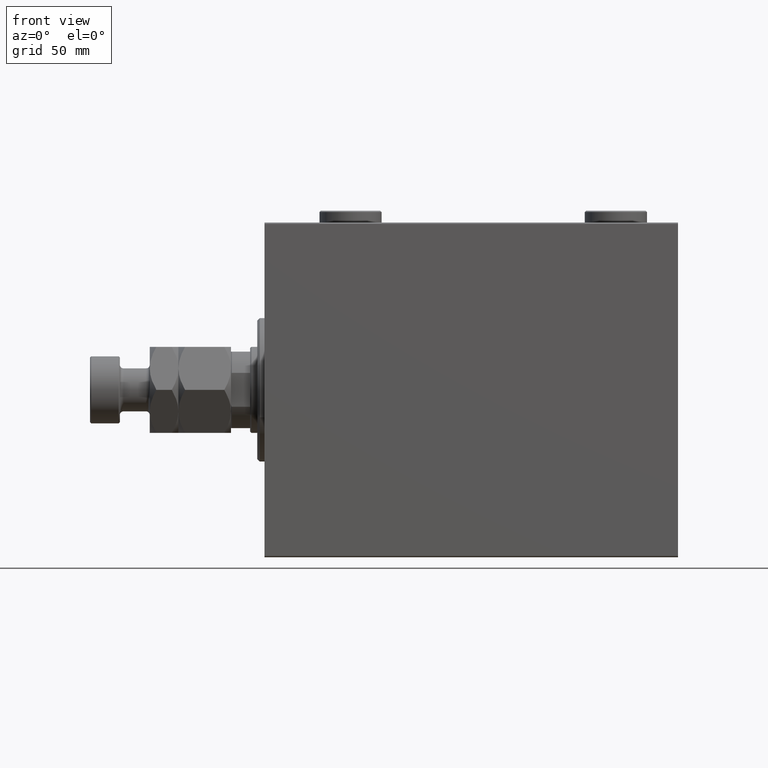
[diagram: clean part render]
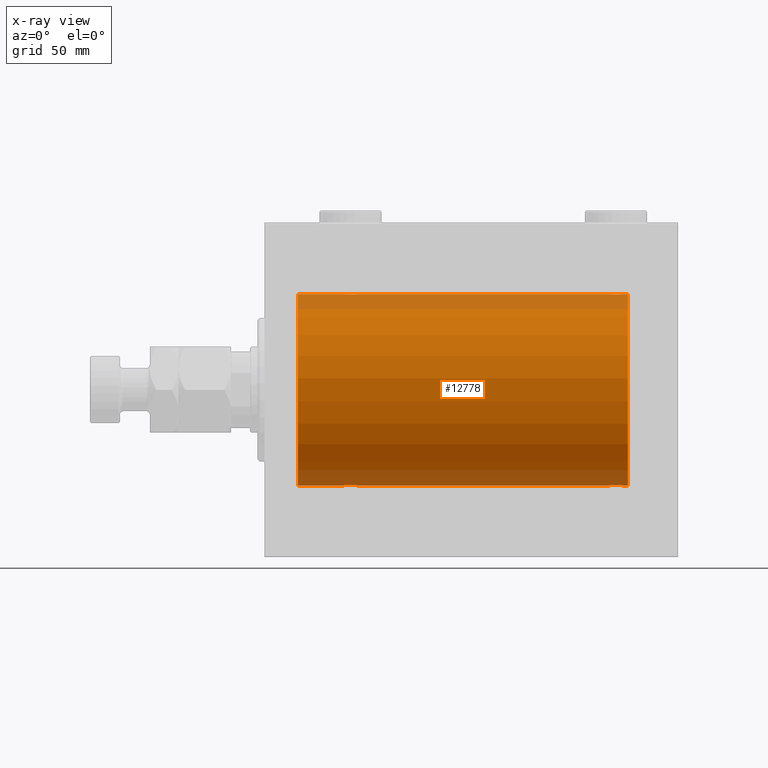
[diagram: x-ray — body ghosted, one internal face saturated and labeled with its STEP entity id]
A machine part, front view, then the same camera in x-ray: the body is ghosted and one INTERNAL B-rep face — a face not visible from any outside direction — is saturated and labeled: STEP entity #12778.
In plain terms, the highlighted cylindrical surface (partial cylindrical patch) has radius 40 mm, axis along (-1, -0, -0).
Its self-contained STEP definition (entity closure, byte-faithful):
#26 = ORIENTED_EDGE ( 'NONE', *, *, #29631, .F. ) ;
#97 = CARTESIAN_POINT ( 'NONE',  ( 149.6018872812850020, -1.506322235190787895, 39.97196309111976831 ) ) ;
#272 = CARTESIAN_POINT ( 'NONE',  ( 38.90425173651352253, -0.7773146824710970293, -39.99291453282343412 ) ) ;
#507 = CARTESIAN_POINT ( 'NONE',  ( 36.77869523415741781, -2.903766417398227162, -39.89448096967571900 ) ) ;
#548 = CARTESIAN_POINT ( 'NONE',  ( 35.03061658105534804, -2.845855236045349734, 39.89870693240651889 ) ) ;
#605 = CARTESIAN_POINT ( 'NONE',  ( 148.9846144781228645, -2.258217541132895967, -39.93644519243653690 ) ) ;
#739 = CARTESIAN_POINT ( 'NONE',  ( 36.96938341894464486, -2.845855236045336412, -39.89870693240652599 ) ) ;
#781 = CARTESIAN_POINT ( 'NONE',  ( 33.30278659419118270, -1.327859336864150253, 39.97836169682017982 ) ) ;
#822 = CARTESIAN_POINT ( 'NONE',  ( 152.0000000000000000, 0.000000000000000000, 40.00000000000000000 ) ) ;
#860 = EDGE_CURVE ( 'NONE', #6389, #2672, #4779, .T. ) ;
#1006 = CARTESIAN_POINT ( 'NONE',  ( 38.92026174991647025, -0.7903958539027386987, 39.99381900068935636 ) ) ;
#1011 = CARTESIAN_POINT ( 'NONE',  ( 144.0000000000000284, -1.482387970046064334E-23, 40.00000000000000000 ) ) ;
#1066 = CARTESIAN_POINT ( 'NONE',  ( 147.9693834189446591, -2.845855236045343961, -39.89870693240651889 ) ) ;
#1240 = CARTESIAN_POINT ( 'NONE',  ( 33.15334726986859692, -0.9668189122103387767, 39.98872185468385254 ) ) ;
#1526 = CARTESIAN_POINT ( 'NONE',  ( 146.6089030749067490, -2.980812880639890583, -39.88879797994690080 ) ) ;
#2495 = CARTESIAN_POINT ( 'NONE',  ( 39.00000000000000000, 4.898587181754971267E-15, -40.00000000000000000 ) ) ;
#2672 = VERTEX_POINT ( 'NONE', #27625 ) ;
#2761 = CARTESIAN_POINT ( 'NONE',  ( 13.99999999999998401, 0.000000000000000000, 0.000000000000000000 ) ) ;
#3203 = CARTESIAN_POINT ( 'NONE',  ( 33.61748319088536618, -1.833695109615709917, -39.95828327492364451 ) ) ;
#3205 = CARTESIAN_POINT ( 'NONE',  ( 144.0957482634864846, -0.7773146824711021363, 39.99291453282343412 ) ) ;
#3431 = CARTESIAN_POINT ( 'NONE',  ( 144.3027865941912182, -1.327859336864145590, 39.97836169682017982 ) ) ;
#3538 = AXIS2_PLACEMENT_3D ( 'NONE', #43288, #43517, #14986 ) ;
#3655 = CARTESIAN_POINT ( 'NONE',  ( 148.5008846840404146, -2.604941918888313612, 39.91523680494984916 ) ) ;
#3889 = CARTESIAN_POINT ( 'NONE',  ( 149.6953700770844193, -1.331594428131642527, 39.97823692017210107 ) ) ;
#3925 = CARTESIAN_POINT ( 'NONE',  ( 150.0000000000000284, 4.898587181765620889E-15, -40.00000000000000000 ) ) ;
#4065 = CARTESIAN_POINT ( 'NONE',  ( 33.07973825008353685, -0.7903958539027335917, -39.99381900068937057 ) ) ;
#4165 = CARTESIAN_POINT ( 'NONE',  ( 145.6714635525370625, -2.696981015661914949, -39.90904630908467965 ) ) ;
#4236 = ORIENTED_EDGE ( 'NONE', *, *, #8737, .T. ) ;
#4298 = CARTESIAN_POINT ( 'NONE',  ( 36.39522483453575319, -2.980272303779539556, -39.88883864243169342 ) ) ;
#4339 = CARTESIAN_POINT ( 'NONE',  ( 36.96489325853514174, -2.847401743820462183, 39.89859630624607689 ) ) ;
#4528 = CARTESIAN_POINT ( 'NONE',  ( 37.33224268865864559, -2.695129988695730727, -39.90917164320281074 ) ) ;
#4636 = CARTESIAN_POINT ( 'NONE',  ( 149.6043359991207922, -1.502129635934003726, -39.97212271185185273 ) ) ;
#4779 = B_SPLINE_CURVE_WITH_KNOTS ( 'NONE', 3,
 ( #37227, #8677, #12006, #23183, #34122, #40789, #4636, #37689, #19160, #605, #33666, #5101, #19624, #1066, #8442, #22947, #37460, #4874, #1526, #16058, #36759, #4165, #18690, #33196, #15124, #44135, #31023, #6044, #5338, #45522, #16286, #6285 ),
 .UNSPECIFIED., .F., .F.,
 ( 4, 2, 2, 2, 2, 2, 2, 2, 2, 2, 2, 2, 2, 2, 2, 4 ),
 ( 0.009382660366305101834, 0.009968941372944135904, 0.01055522237958316997, 0.01114150338622220404, 0.01172778439286123811, 0.01231406539950027391, 0.01290034640613930798, 0.01348662741277834205, 0.01407290841941737612, 0.01465918942605641019, 0.01524547043269544426, 0.01583175143933447659, 0.01641803244597351413, 0.01700431345261254473, 0.01759059445925158227, 0.01876315647252968163 ),
 .UNSPECIFIED. ) ;
#4874 = CARTESIAN_POINT ( 'NONE',  ( 146.8043946892691451, -3.000157693440632212, -39.88732948994960736 ) ) ;
#5101 = CARTESIAN_POINT ( 'NONE',  ( 148.5044308291346908, -2.602909538701751568, -39.91537030566260569 ) ) ;
#5285 = EDGE_CURVE ( 'NONE', #21728, #8490, #5651, .T. ) ;
#5338 = CARTESIAN_POINT ( 'NONE',  ( 144.3046299229156375, -1.331594428131649410, -39.97823692017209396 ) ) ;
#5651 = LINE ( 'NONE', #31352, #33393 ) ;
#6014 = CARTESIAN_POINT ( 'NONE',  ( 13.99999999999998401, 4.898587196589413026E-15, -40.00000000000000000 ) ) ;
#6044 = CARTESIAN_POINT ( 'NONE',  ( 144.3981127187151969, -1.506322235190783898, -39.97196309111976831 ) ) ;
#6285 = CARTESIAN_POINT ( 'NONE',  ( 144.0000000000000284, 2.642090954555614270E-16, -40.00000000000000000 ) ) ;
#6389 = VERTEX_POINT ( 'NONE', #3925 ) ;
#6549 = CARTESIAN_POINT ( 'NONE',  ( 38.38507600915352924, -1.830402106103509174, -39.95843610133493229 ) ) ;
#6750 = CARTESIAN_POINT ( 'NONE',  ( 32.99999999999999289, -1.483452932268112700E-23, 40.00000000000000000 ) ) ;
#6861 = CARTESIAN_POINT ( 'NONE',  ( 32.99999999999999289, -1.483452932268112700E-23, 40.00000000000000000 ) ) ;
#7008 = CARTESIAN_POINT ( 'NONE',  ( 144.0000000000000284, -0.1957844162750525807, 40.00000000000000000 ) ) ;
#7407 = ORIENTED_EDGE ( 'NONE', *, *, #5285, .F. ) ;
#7456 = CARTESIAN_POINT ( 'NONE',  ( 152.0000000000000000, 4.898587196589413026E-15, -40.00000000000000000 ) ) ;
#7643 = CARTESIAN_POINT ( 'NONE',  ( 37.50443082913467663, -2.602909538701744463, -39.91537030566261279 ) ) ;
#7684 = CARTESIAN_POINT ( 'NONE',  ( 34.49556917086533758, -2.602909538701760006, 39.91537030566259148 ) ) ;
#7693 = VERTEX_POINT ( 'NONE', #17010 ) ;
#7914 = CARTESIAN_POINT ( 'NONE',  ( 38.25829670320502629, -1.984537326394305801, 39.95097977400578060 ) ) ;
#7943 = EDGE_CURVE ( 'NONE', #7693, #6389, #26226, .T. ) ;
#8146 = CARTESIAN_POINT ( 'NONE',  ( 34.66775731134134730, -2.695129988695744494, 39.90917164320281074 ) ) ;
#8442 = CARTESIAN_POINT ( 'NONE',  ( 147.7786952341575102, -2.903766417398225830, -39.89448096967572610 ) ) ;
#8490 = VERTEX_POINT ( 'NONE', #36305 ) ;
#8677 = CARTESIAN_POINT ( 'NONE',  ( 150.0000000000000568, -0.1957844162750477235, -40.00000000000000000 ) ) ;
#8737 = EDGE_CURVE ( 'NONE', #30381, #19694, #19053, .T. ) ;
#9763 = VERTEX_POINT ( 'NONE', #15594 ) ;
#10358 = CARTESIAN_POINT ( 'NONE',  ( 32.99999999999999289, 8.398598542115384856E-15, -40.00000000000000000 ) ) ;
#10360 = CARTESIAN_POINT ( 'NONE',  ( 145.0153855218772208, -2.258217541132898631, 39.93644519243653690 ) ) ;
#10814 = CARTESIAN_POINT ( 'NONE',  ( 144.0189812288907660, -0.3904143323715967839, 39.99856256910221219 ) ) ;
#10925 = DIRECTION ( 'NONE',  ( -1.000000000000000000, -0.000000000000000000, -0.000000000000000000 ) ) ;
#11322 = ORIENTED_EDGE ( 'NONE', *, *, #7943, .T. ) ;
#11453 = CARTESIAN_POINT ( 'NONE',  ( 33.39811271871507614, -1.506322235190776127, -39.97196309111974699 ) ) ;
#12006 = CARTESIAN_POINT ( 'NONE',  ( 149.9810187711093477, -0.3904143323715905112, -39.99856256910220509 ) ) ;
#12054 = VECTOR ( 'NONE', #25981, 1000.000000000000000 ) ;
#12077 = ORIENTED_EDGE ( 'NONE', *, *, #19233, .F. ) ;
#12180 = ORIENTED_EDGE ( 'NONE', *, *, #37354, .T. ) ;
#12188 = CARTESIAN_POINT ( 'NONE',  ( 36.39109692509333627, -2.980812880639903906, 39.88879797994688658 ) ) ;
#12647 = AXIS2_PLACEMENT_3D ( 'NONE', #2761, #32254, #20856 ) ;
#12778 = ADVANCED_FACE ( 'NONE', ( #39490 ), #18079, .F. ) ;
#12969 = CARTESIAN_POINT ( 'NONE',  ( 152.0000000000000000, 4.898587196589413026E-15, -40.00000000000000000 ) ) ;
#13371 = EDGE_CURVE ( 'NONE', #17421, #8490, #19512, .T. ) ;
#13935 = CARTESIAN_POINT ( 'NONE',  ( 144.1533472698686182, -0.9668189122103342248, 39.98872185468384544 ) ) ;
#14732 = CARTESIAN_POINT ( 'NONE',  ( 152.0000000000000000, 4.898587196589413026E-15, -40.00000000000000000 ) ) ;
#14986 = DIRECTION ( 'NONE',  ( 0.000000000000000000, 0.000000000000000000, 1.000000000000000000 ) ) ;
#15065 = CARTESIAN_POINT ( 'NONE',  ( 33.01898122889073051, -0.3904143323715976166, 39.99856256910221219 ) ) ;
#15124 = CARTESIAN_POINT ( 'NONE',  ( 145.0186372048578107, -2.261082456166703558, -39.93628274425759628 ) ) ;
#15260 = CARTESIAN_POINT ( 'NONE',  ( 34.17309815367587333, -2.387636253591803648, -39.92882473497732576 ) ) ;
#15298 = CARTESIAN_POINT ( 'NONE',  ( 35.79958713980802543, -2.999840380514749327, 39.88735335562824247 ) ) ;
#15530 = CARTESIAN_POINT ( 'NONE',  ( 36.77455678826341057, -2.904869018727228358, 39.89440043036668015 ) ) ;
#15594 = CARTESIAN_POINT ( 'NONE',  ( 39.00000000000000000, 1.037715139942869821E-15, 40.00000000000000000 ) ) ;
#15758 = CARTESIAN_POINT ( 'NONE',  ( 33.39566400087915810, -1.502129635934004614, 39.97212271185186694 ) ) ;
#16058 = CARTESIAN_POINT ( 'NONE',  ( 146.2254432117366036, -2.904869018727213703, -39.89440043036668726 ) ) ;
#16286 = CARTESIAN_POINT ( 'NONE',  ( 144.0000000000000284, -0.3964922677423716735, -40.00000000000001421 ) ) ;
#16934 = ORIENTED_EDGE ( 'NONE', *, *, #13371, .T. ) ;
#17010 = CARTESIAN_POINT ( 'NONE',  ( 152.0000000000000000, 4.898587196589413026E-15, -40.00000000000000000 ) ) ;
#17387 = EDGE_CURVE ( 'NONE', #7693, #42622, #26439, .T. ) ;
#17421 = VERTEX_POINT ( 'NONE', #6014 ) ;
#17500 = CARTESIAN_POINT ( 'NONE',  ( 38.84665273013138886, -0.9668189122103337807, -39.98872185468385965 ) ) ;
#17731 = CARTESIAN_POINT ( 'NONE',  ( 35.60890307490667794, -2.980812880639888363, -39.88879797994690080 ) ) ;
#18079 = CYLINDRICAL_SURFACE ( 'NONE', #3538, 40.00000000000000000 ) ;
#18184 = CARTESIAN_POINT ( 'NONE',  ( 148.3285364474630228, -2.696981015661923387, 39.90904630908469386 ) ) ;
#18420 = CARTESIAN_POINT ( 'NONE',  ( 144.3956640008792078, -1.502129635934003948, 39.97212271185186694 ) ) ;
#18632 = CARTESIAN_POINT ( 'NONE',  ( 33.09574826348647036, -0.7773146824711036906, 39.99291453282343412 ) ) ;
#18656 = DIRECTION ( 'NONE',  ( 0.000000000000000000, 0.000000000000000000, 1.000000000000000000 ) ) ;
#18690 = CARTESIAN_POINT ( 'NONE',  ( 145.4991153159597275, -2.604941918888306951, -39.91523680494984205 ) ) ;
#18819 = CARTESIAN_POINT ( 'NONE',  ( 34.01863720485771125, -2.261082456166694676, -39.93628274425758917 ) ) ;
#18850 = CARTESIAN_POINT ( 'NONE',  ( 152.0000000000000000, 0.000000000000000000, 40.00000000000000000 ) ) ;
#18861 = CARTESIAN_POINT ( 'NONE',  ( 37.50088468404035069, -2.604941918888315833, 39.91523680494983495 ) ) ;
#19053 = B_SPLINE_CURVE_WITH_KNOTS ( 'NONE', 3,
 ( #2495, #31534, #46023, #272, #17500, #39131, #26181, #6549, #21071, #35566, #36656, #7643, #4528, #739, #507, #4298, #42703, #19060, #17731, #40691, #40458, #35802, #22158, #15260, #18819, #33323, #3203, #11453, #39360, #4065, #29763, #10358 ),
 .UNSPECIFIED., .F., .F.,
 ( 4, 2, 2, 2, 2, 2, 2, 2, 2, 2, 2, 2, 2, 2, 2, 4 ),
 ( 0.009382660366305113978, 0.009968941372944149781, 0.01055522237958318559, 0.01114150338622222139, 0.01172778439286125719, 0.01231406539950029300, 0.01290034640613932707, 0.01348662741277836287, 0.01407290841941739867, 0.01465918942605643448, 0.01524547043269547028, 0.01583175143933450435, 0.01641803244597354189, 0.01700431345261257943, 0.01759059445925161697, 0.01876315647252968857 ),
 .UNSPECIFIED. ) ;
#19060 = CARTESIAN_POINT ( 'NONE',  ( 35.80439468926913094, -3.000157693440628659, -39.88732948994960736 ) ) ;
#19160 = CARTESIAN_POINT ( 'NONE',  ( 149.2609761699473836, -1.981471132463159313, -39.95113231465138171 ) ) ;
#19233 = EDGE_CURVE ( 'NONE', #26748, #9763, #40718, .T. ) ;
#19512 = CIRCLE ( 'NONE', #12647, 40.00000000000000000 ) ;
#19624 = CARTESIAN_POINT ( 'NONE',  ( 148.3322426886586527, -2.695129988695739609, -39.90917164320282495 ) ) ;
#19694 = VERTEX_POINT ( 'NONE', #38007 ) ;
#20856 = DIRECTION ( 'NONE',  ( 0.000000000000000000, 0.000000000000000000, 1.000000000000000000 ) ) ;
#21071 = CARTESIAN_POINT ( 'NONE',  ( 38.26097616994741912, -1.981471132463159535, -39.95113231465138881 ) ) ;
#21195 = B_SPLINE_CURVE_WITH_KNOTS ( 'NONE', 3,
 ( #6750, #33838, #15065, #18632, #1240, #781, #15758, #33365, #44995, #25758, #37632, #7684, #8146, #548, #30264, #37395, #15298, #40499, #12188, #15530, #4339, #22199, #18861, #44761, #33140, #7914, #29802, #36933, #41195, #1006, #22653, #37162 ),
 .UNSPECIFIED., .F., .F.,
 ( 4, 2, 2, 2, 2, 2, 2, 2, 2, 2, 2, 2, 2, 2, 2, 4 ),
 ( 0.009382660366305105304, 0.009968941372944142842, 0.01055522237958318038, 0.01114150338622221965, 0.01172778439286125719, 0.01231406539950029473, 0.01290034640613933400, 0.01348662741277837154, 0.01407290841941740908, 0.01465918942605644835, 0.01524547043269548416, 0.01583175143933452517, 0.01641803244597356271, 0.01700431345261260024, 0.01759059445925163778, 0.01876315647252971286 ),
 .UNSPECIFIED. ) ;
#21306 = CARTESIAN_POINT ( 'NONE',  ( 149.9202617499165342, -0.7903958539027363672, 39.99381900068937767 ) ) ;
#21728 = VERTEX_POINT ( 'NONE', #6861 ) ;
#21765 = CARTESIAN_POINT ( 'NONE',  ( 147.7745567882635100, -2.904869018727220364, 39.89440043036669437 ) ) ;
#21988 = CARTESIAN_POINT ( 'NONE',  ( 145.1695517717760424, -2.384933850258109445, 39.92898715513240404 ) ) ;
#22158 = CARTESIAN_POINT ( 'NONE',  ( 34.49911531595964220, -2.604941918888299401, -39.91523680494982784 ) ) ;
#22199 = CARTESIAN_POINT ( 'NONE',  ( 37.32853644746295885, -2.696981015661930936, 39.90904630908465833 ) ) ;
#22653 = CARTESIAN_POINT ( 'NONE',  ( 39.00000000000000711, -0.3964922677423692865, 40.00000000000000711 ) ) ;
#22677 = DIRECTION ( 'NONE',  ( -1.000000000000000000, 0.000000000000000000, 0.000000000000000000 ) ) ;
#22947 = CARTESIAN_POINT ( 'NONE',  ( 147.3952248345358669, -2.980272303779540444, -39.88883864243170763 ) ) ;
#23007 = ORIENTED_EDGE ( 'NONE', *, *, #860, .T. ) ;
#23183 = CARTESIAN_POINT ( 'NONE',  ( 149.9042517365135438, -0.7773146824710949199, -39.99291453282344833 ) ) ;
#24082 = ORIENTED_EDGE ( 'NONE', *, *, #27528, .T. ) ;
#24629 = CARTESIAN_POINT ( 'NONE',  ( 145.6677573113414326, -2.695129988695745826, 39.90917164320281074 ) ) ;
#24857 = CARTESIAN_POINT ( 'NONE',  ( 145.4955691708653092, -2.602909538701757342, 39.91537030566259858 ) ) ;
#25089 = CARTESIAN_POINT ( 'NONE',  ( 146.6047751654642468, -2.980272303779546217, 39.88883864243170052 ) ) ;
#25536 = DIRECTION ( 'NONE',  ( -1.000000000000000000, -0.000000000000000000, -0.000000000000000000 ) ) ;
#25549 = CARTESIAN_POINT ( 'NONE',  ( 144.6149239908465063, -1.830402106103516280, 39.95843610133492518 ) ) ;
#25758 = CARTESIAN_POINT ( 'NONE',  ( 34.01538552187719233, -2.258217541132905293, 39.93644519243653690 ) ) ;
#25981 = DIRECTION ( 'NONE',  ( -1.000000000000000000, -0.000000000000000000, -0.000000000000000000 ) ) ;
#26030 = LINE ( 'NONE', #822, #46458 ) ;
#26181 = CARTESIAN_POINT ( 'NONE',  ( 38.60433599912082769, -1.502129635933996621, -39.97212271185184562 ) ) ;
#26226 = LINE ( 'NONE', #7456, #29780 ) ;
#26439 = CIRCLE ( 'NONE', #34063, 40.00000000000000000 ) ;
#26585 = CARTESIAN_POINT ( 'NONE',  ( 150.0000000000000284, 1.446721683758770418E-15, 40.00000000000000000 ) ) ;
#26748 = VERTEX_POINT ( 'NONE', #1011 ) ;
#27528 = EDGE_CURVE ( 'NONE', #2672, #30381, #45534, .T. ) ;
#27625 = CARTESIAN_POINT ( 'NONE',  ( 144.0000000000000284, 2.642090954555614270E-16, -40.00000000000000000 ) ) ;
#27804 = B_SPLINE_CURVE_WITH_KNOTS ( 'NONE', 3,
 ( #28423, #7008, #10814, #3205, #13935, #3431, #18420, #25549, #42930, #10360, #21988, #24857, #24629, #35568, #39133, #25089, #36254, #40060, #39592, #21765, #43392, #18184, #3655, #32696, #43151, #42704, #36487, #97, #3889, #21306, #36033, #46954 ),
 .UNSPECIFIED., .F., .F.,
 ( 4, 2, 2, 2, 2, 2, 2, 2, 2, 2, 2, 2, 2, 2, 2, 4 ),
 ( 0.009382660366305094896, 0.009968941372944130699, 0.01055522237958316650, 0.01114150338622220404, 0.01172778439286123985, 0.01231406539950027565, 0.01290034640613930972, 0.01348662741277834379, 0.01407290841941737959, 0.01465918942605641540, 0.01524547043269544946, 0.01583175143933448353, 0.01641803244597352107, 0.01700431345261255514, 0.01759059445925158921, 0.01876315647252969204 ),
 .UNSPECIFIED. ) ;
#28423 = CARTESIAN_POINT ( 'NONE',  ( 144.0000000000000284, -1.482387970046064334E-23, 40.00000000000000000 ) ) ;
#29631 = EDGE_CURVE ( 'NONE', #42622, #35030, #26030, .T. ) ;
#29763 = CARTESIAN_POINT ( 'NONE',  ( 33.00000000000000000, -0.3964922677423601272, -40.00000000000001421 ) ) ;
#29780 = VECTOR ( 'NONE', #25536, 1000.000000000000000 ) ;
#29802 = CARTESIAN_POINT ( 'NONE',  ( 38.38251680911464803, -1.833695109615718355, 39.95828327492363741 ) ) ;
#30075 = DIRECTION ( 'NONE',  ( -1.000000000000000000, -0.000000000000000000, -0.000000000000000000 ) ) ;
#30264 = CARTESIAN_POINT ( 'NONE',  ( 35.22130476584258219, -2.903766417398241373, 39.89448096967571189 ) ) ;
#30381 = VERTEX_POINT ( 'NONE', #38747 ) ;
#31023 = CARTESIAN_POINT ( 'NONE',  ( 144.6174831908854230, -1.833695109615717245, -39.95828327492364451 ) ) ;
#31110 = DIRECTION ( 'NONE',  ( -1.000000000000000000, -0.000000000000000000, -0.000000000000000000 ) ) ;
#31332 = ORIENTED_EDGE ( 'NONE', *, *, #17387, .F. ) ;
#31352 = CARTESIAN_POINT ( 'NONE',  ( 152.0000000000000000, 0.000000000000000000, 40.00000000000000000 ) ) ;
#31534 = CARTESIAN_POINT ( 'NONE',  ( 39.00000000000000000, -0.1957844162750501937, -39.99999999999999289 ) ) ;
#32254 = DIRECTION ( 'NONE',  ( -1.000000000000000000, 0.000000000000000000, 0.000000000000000000 ) ) ;
#32696 = CARTESIAN_POINT ( 'NONE',  ( 148.8269018463241480, -2.387636253591820079, 39.92882473497732576 ) ) ;
#33140 = CARTESIAN_POINT ( 'NONE',  ( 37.98136279514229585, -2.261082456166707111, 39.93628274425758207 ) ) ;
#33196 = CARTESIAN_POINT ( 'NONE',  ( 145.1730981536759089, -2.387636253591812974, -39.92882473497733287 ) ) ;
#33323 = CARTESIAN_POINT ( 'NONE',  ( 33.74170329679496660, -1.984537326394296253, -39.95097977400577349 ) ) ;
#33365 = CARTESIAN_POINT ( 'NONE',  ( 33.61492399084646365, -1.830402106103518722, 39.95843610133494650 ) ) ;
#33393 = VECTOR ( 'NONE', #31110, 1000.000000000000000 ) ;
#33666 = CARTESIAN_POINT ( 'NONE',  ( 148.8304482282240429, -2.384933850258102783, -39.92898715513240404 ) ) ;
#33838 = CARTESIAN_POINT ( 'NONE',  ( 32.99999999999997158, -0.1957844162750552452, 40.00000000000000000 ) ) ;
#34063 = AXIS2_PLACEMENT_3D ( 'NONE', #36725, #22677, #18656 ) ;
#34122 = CARTESIAN_POINT ( 'NONE',  ( 149.8466527301314386, -0.9668189122103240107, -39.98872185468385254 ) ) ;
#34887 = EDGE_CURVE ( 'NONE', #19694, #17421, #46839, .T. ) ;
#35030 = VERTEX_POINT ( 'NONE', #26585 ) ;
#35566 = CARTESIAN_POINT ( 'NONE',  ( 37.98461447812281477, -2.258217541132894191, -39.93644519243654400 ) ) ;
#35568 = CARTESIAN_POINT ( 'NONE',  ( 146.0306165810553409, -2.845855236045348402, 39.89870693240650468 ) ) ;
#35802 = CARTESIAN_POINT ( 'NONE',  ( 34.67146355253703405, -2.696981015661913172, -39.90904630908467254 ) ) ;
#36033 = CARTESIAN_POINT ( 'NONE',  ( 150.0000000000000284, -0.3964922677423700081, 40.00000000000001421 ) ) ;
#36254 = CARTESIAN_POINT ( 'NONE',  ( 146.7995871398080112, -2.999840380514742666, 39.88735335562825668 ) ) ;
#36305 = CARTESIAN_POINT ( 'NONE',  ( 13.99999999999998401, 0.000000000000000000, 40.00000000000000000 ) ) ;
#36487 = CARTESIAN_POINT ( 'NONE',  ( 149.3825168091146622, -1.833695109615722352, 39.95828327492363030 ) ) ;
#36656 = CARTESIAN_POINT ( 'NONE',  ( 37.83044822822401443, -2.384933850258097010, -39.92898715513240404 ) ) ;
#36699 = VECTOR ( 'NONE', #10925, 1000.000000000000000 ) ;
#36725 = CARTESIAN_POINT ( 'NONE',  ( 152.0000000000000000, 0.000000000000000000, 0.000000000000000000 ) ) ;
#36759 = CARTESIAN_POINT ( 'NONE',  ( 146.0351067414649151, -2.847401743820447972, -39.89859630624609110 ) ) ;
#36933 = CARTESIAN_POINT ( 'NONE',  ( 38.60188728128492386, -1.506322235190783232, 39.97196309111974699 ) ) ;
#37162 = CARTESIAN_POINT ( 'NONE',  ( 39.00000000000000000, 1.037715139942869821E-15, 40.00000000000000000 ) ) ;
#37227 = CARTESIAN_POINT ( 'NONE',  ( 150.0000000000000284, 4.898587181765620889E-15, -40.00000000000000000 ) ) ;
#37354 = EDGE_CURVE ( 'NONE', #26748, #35030, #27804, .T. ) ;
#37395 = CARTESIAN_POINT ( 'NONE',  ( 35.60477516546423260, -2.980272303779553766, 39.88883864243167920 ) ) ;
#37460 = CARTESIAN_POINT ( 'NONE',  ( 147.2004128601920740, -2.999840380514735561, -39.88735335562826378 ) ) ;
#37632 = CARTESIAN_POINT ( 'NONE',  ( 34.16955177177597847, -2.384933850258112553, 39.92898715513240404 ) ) ;
#37689 = CARTESIAN_POINT ( 'NONE',  ( 149.3850760091535790, -1.830402106103514281, -39.95843610133493229 ) ) ;
#38007 = CARTESIAN_POINT ( 'NONE',  ( 32.99999999999999289, 8.398598542115384856E-15, -40.00000000000000000 ) ) ;
#38394 = ORIENTED_EDGE ( 'NONE', *, *, #43836, .T. ) ;
#38747 = CARTESIAN_POINT ( 'NONE',  ( 39.00000000000000000, 4.898587181754971267E-15, -40.00000000000000000 ) ) ;
#39131 = CARTESIAN_POINT ( 'NONE',  ( 38.69721340580881019, -1.327859336864143147, -39.97836169682018692 ) ) ;
#39133 = CARTESIAN_POINT ( 'NONE',  ( 146.2213047658425467, -2.903766417398230271, 39.89448096967571189 ) ) ;
#39360 = CARTESIAN_POINT ( 'NONE',  ( 33.30462992291564461, -1.331594428131637420, -39.97823692017210817 ) ) ;
#39490 = FACE_OUTER_BOUND ( 'NONE', #41719, .T. ) ;
#39592 = CARTESIAN_POINT ( 'NONE',  ( 147.3910969250933931, -2.980812880639897688, 39.88879797994690080 ) ) ;
#40060 = CARTESIAN_POINT ( 'NONE',  ( 147.1956053107309685, -3.000157693440639761, 39.88732948994960736 ) ) ;
#40458 = CARTESIAN_POINT ( 'NONE',  ( 35.03510674146485115, -2.847401743820447084, -39.89859630624608400 ) ) ;
#40499 = CARTESIAN_POINT ( 'NONE',  ( 36.19560531073086906, -3.000157693440643758, 39.88732948994960026 ) ) ;
#40691 = CARTESIAN_POINT ( 'NONE',  ( 35.22544321173659654, -2.904869018727211483, -39.89440043036668726 ) ) ;
#40718 = LINE ( 'NONE', #18850, #12054 ) ;
#40789 = CARTESIAN_POINT ( 'NONE',  ( 149.6972134058088670, -1.327859336864134043, -39.97836169682016561 ) ) ;
#40800 = DIRECTION ( 'NONE',  ( -1.000000000000000000, -0.000000000000000000, -0.000000000000000000 ) ) ;
#41195 = CARTESIAN_POINT ( 'NONE',  ( 38.69537007708435539, -1.331594428131644747, 39.97823692017209396 ) ) ;
#41719 = EDGE_LOOP ( 'NONE', ( #31332, #11322, #23007, #24082, #4236, #43303, #16934, #7407, #38394, #12077, #12180, #26 ) ) ;
#41793 = VECTOR ( 'NONE', #40800, 1000.000000000000000 ) ;
#42622 = VERTEX_POINT ( 'NONE', #45040 ) ;
#42703 = CARTESIAN_POINT ( 'NONE',  ( 36.20041286019198168, -2.999840380514733340, -39.88735335562824957 ) ) ;
#42704 = CARTESIAN_POINT ( 'NONE',  ( 149.2582967032050760, -1.984537326394308909, 39.95097977400577349 ) ) ;
#42930 = CARTESIAN_POINT ( 'NONE',  ( 144.7390238300526164, -1.981471132463162643, 39.95113231465138171 ) ) ;
#43151 = CARTESIAN_POINT ( 'NONE',  ( 148.9813627951423030, -2.261082456166709775, 39.93628274425758207 ) ) ;
#43288 = CARTESIAN_POINT ( 'NONE',  ( 152.0000000000000000, 0.000000000000000000, 0.000000000000000000 ) ) ;
#43303 = ORIENTED_EDGE ( 'NONE', *, *, #34887, .T. ) ;
#43392 = CARTESIAN_POINT ( 'NONE',  ( 147.9648932585351702, -2.847401743820454190, 39.89859630624609821 ) ) ;
#43517 = DIRECTION ( 'NONE',  ( -1.000000000000000000, -0.000000000000000000, -0.000000000000000000 ) ) ;
#43836 = EDGE_CURVE ( 'NONE', #21728, #9763, #21195, .T. ) ;
#44135 = CARTESIAN_POINT ( 'NONE',  ( 144.7417032967949524, -1.984537326394303802, -39.95097977400578060 ) ) ;
#44761 = CARTESIAN_POINT ( 'NONE',  ( 37.82690184632411246, -2.387636253591820079, 39.92882473497731866 ) ) ;
#44995 = CARTESIAN_POINT ( 'NONE',  ( 33.73902383005257377, -1.981471132463168416, 39.95113231465138881 ) ) ;
#45040 = CARTESIAN_POINT ( 'NONE',  ( 152.0000000000000000, 0.000000000000000000, 40.00000000000000000 ) ) ;
#45522 = CARTESIAN_POINT ( 'NONE',  ( 144.0797382500835795, -0.7903958539027464703, -39.99381900068937057 ) ) ;
#45534 = LINE ( 'NONE', #12969, #41793 ) ;
#46023 = CARTESIAN_POINT ( 'NONE',  ( 38.98101877110926239, -0.3904143323715922875, -39.99856256910221219 ) ) ;
#46458 = VECTOR ( 'NONE', #30075, 1000.000000000000000 ) ;
#46839 = LINE ( 'NONE', #14732, #36699 ) ;
#46954 = CARTESIAN_POINT ( 'NONE',  ( 150.0000000000000284, 1.446721683758770418E-15, 40.00000000000000000 ) ) ;